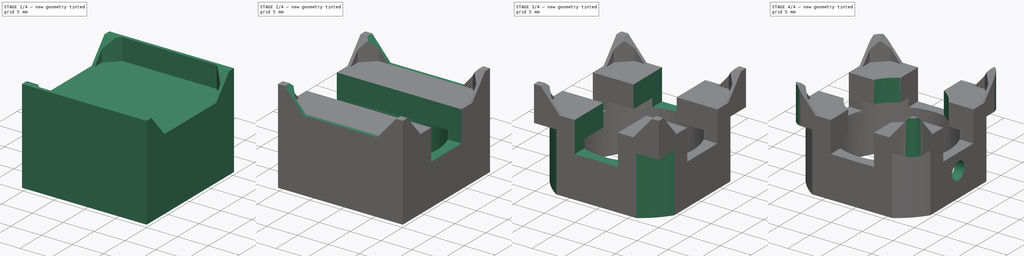
[diagram: build sequence overview — one tinted view per stage of 4, left to right]
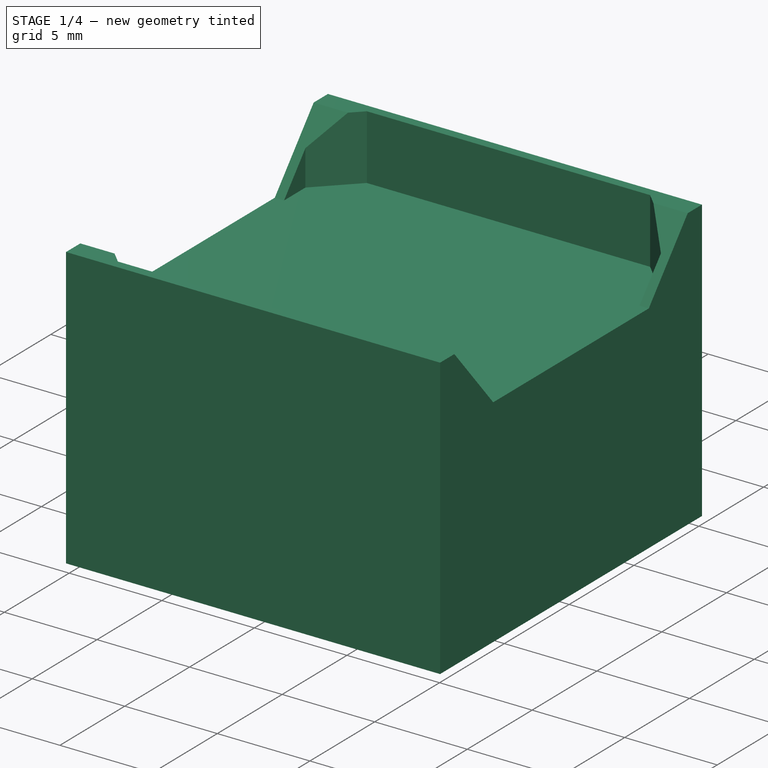
[diagram: stage 1 of 4 — iso view after this stage's code; geometry added in this stage tinted green]
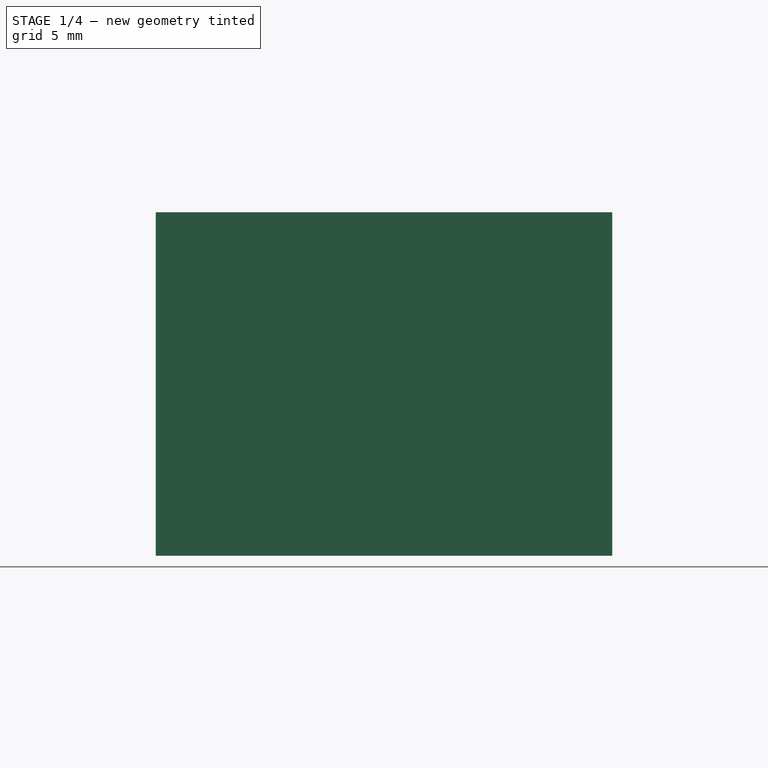
[diagram: stage 1 of 4 — front view after this stage's code; geometry added in this stage tinted green]
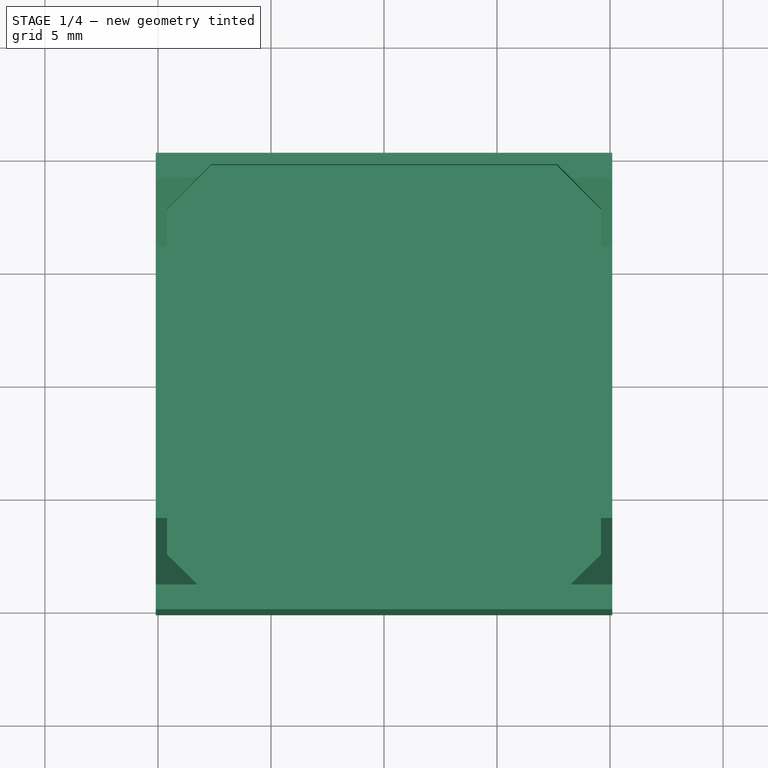
[diagram: stage 1 of 4 — top view after this stage's code; geometry added in this stage tinted green]
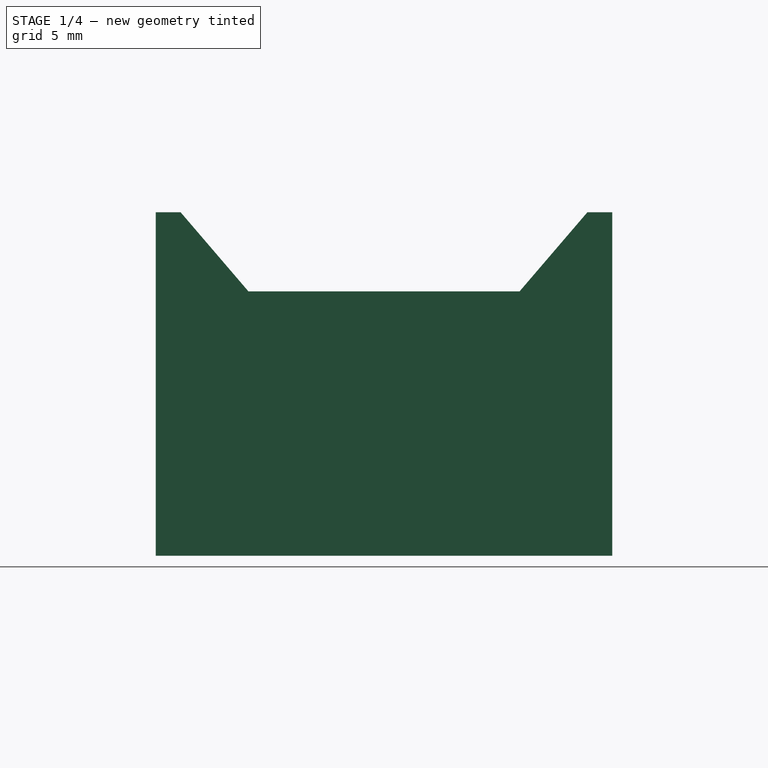
[diagram: stage 1 of 4 — right view after this stage's code; geometry added in this stage tinted green]
FCSTD DOCUMENT  (FreeCAD 0.15R4671 (Git))
Label: Rubiks Center Square Foot
License: All rights reserved
LicenseURL: http://en.wikipedia.org/wiki/All_rights_reserved
objects: Sketcher::SketchObject×10, PartDesign::Pocket×9, PartDesign::Pad×1, Part::Fillet×1
note: 31 computed .brp shape members not serialized (recipe doc carries the construction recipe); baked Part::Feature solids carry a one-line shape summary decoded from their .brp

FEATURE [Sketcher::SketchObject] Sketch
  sketch-geometry (4):
    g0: LineSegment StartX=-10.1 StartY=10.1 StartZ=0 EndX=10.1 EndY=10.1 EndZ=0
    g1: LineSegment StartX=10.1 StartY=10.1 StartZ=0 EndX=10.1 EndY=-10.1 EndZ=0
    g2: LineSegment StartX=10.1 StartY=-10.1 StartZ=0 EndX=-10.1 EndY=-10.1 EndZ=0
    g3: LineSegment StartX=-10.1 StartY=-10.1 StartZ=0 EndX=-10.1 EndY=10.1 EndZ=0
  constraints (12):
    c: Coincident(g0,g1)
    c: Coincident(g1,g2)
    c: Coincident(g2,g3)
    c: Coincident(g3,g0)
    c: Horizontal(g0)
    c: Horizontal(g2)
    c: Vertical(g1)
    c: Vertical(g3)
    c: Equal(g3,g0)
    c: Symmetric(g0,g0,g-2)
    c: Symmetric(g1,g0,g-1)
    c: Distance(g0) = 20.2
FEATURE [PartDesign::Pad] Pad
  Length = 15.2
  Length2 = 100
  Sketch = -> Sketch
  Type = 0
FEATURE [Sketcher::SketchObject] Sketch004
  Placement = pos=(0,0,15.2) rot=(0,0,1;0rad)
  Support = -> Pad [Face6]
  sketch-geometry (8):
    g0: LineSegment StartX=9.6 StartY=7.65 StartZ=0 EndX=7.65 EndY=9.6 EndZ=0
    g1: LineSegment StartX=7.65 StartY=9.6 StartZ=0 EndX=-7.65 EndY=9.6 EndZ=0
    g2: LineSegment StartX=-7.65 StartY=9.6 StartZ=0 EndX=-9.6 EndY=7.65 EndZ=0
    g3: LineSegment StartX=-9.6 StartY=7.65 StartZ=0 EndX=-9.6 EndY=-7.65 EndZ=0
    g4: LineSegment StartX=-9.6 StartY=-7.65 StartZ=0 EndX=-7.65 EndY=-9.6 EndZ=0
    g5: LineSegment StartX=-7.65 StartY=-9.6 StartZ=0 EndX=7.65 EndY=-9.6 EndZ=0
    g6: LineSegment StartX=7.65 StartY=-9.6 StartZ=0 EndX=9.6 EndY=-7.65 EndZ=0
    g7: LineSegment StartX=9.6 StartY=-7.65 StartZ=0 EndX=9.6 EndY=7.65 EndZ=0
  constraints (24):
    c: Coincident(g0,g1)
    c: Coincident(g1,g2)
    c: Coincident(g2,g3)
    c: Coincident(g3,g4)
    c: Coincident(g4,g5)
    c: Coincident(g5,g6)
    c: Coincident(g6,g7)
    c: Coincident(g7,g0)
    c: Coincident(g5,g-1)
    c: Vertical(g3)
    c: Vertical(g7)
    c: Horizontal(g1)
    c: Horizontal(g5)
    c: Symmetric(g2,g0,g-2)
    c: Symmetric(g1,g4,g-1)
    c: DistanceX(g2,g0) = 19.2
    c: Equal(g7,g3)
    c: Equal(g3,g5)
    c: Equal(g5,g1)
    c: Equal(g2,g0)
    c: Equal(g0,g6)
    c: Equal(g6,g4)
    c: DistanceY(g1,g4) = -19.2
    c: DistanceY(g3,g2) = 15.3
FEATURE [PartDesign::Pocket] Pocket
  Length = 3.5
  Sketch = -> Sketch004
  Type = 0
FEATURE [Sketcher::SketchObject] Sketch006
  ExternalGeometry = -> [Pocket]
  Placement = pos=(-10.1,0,0) rot=(0.57735,-0.57735,-0.57735;2.0944rad)
  Support = -> Pocket [Face2]
  sketch-geometry (4):
    g0: LineSegment StartX=-9 StartY=15.2 StartZ=0 EndX=-6 EndY=11.7 EndZ=0
    g1: LineSegment StartX=-6 StartY=11.7 StartZ=0 EndX=6 EndY=11.7 EndZ=0
    g2: LineSegment StartX=6 StartY=11.7 StartZ=0 EndX=9 EndY=15.2 EndZ=0
    g3: LineSegment StartX=9 StartY=15.2 StartZ=0 EndX=-9 EndY=15.2 EndZ=0
  constraints (12):
    c: PointOnObject(g0,g-3)
    c: Coincident(g0,g1)
    c: Horizontal(g1)
    c: Coincident(g1,g2)
    c: Coincident(g2,g3)
    c: Coincident(g3,g0)
    c: Horizontal(g3)
    c: DistanceY(g1,g2) = 3.5
    c: Symmetric(g0,g1,g-2)
    c: Symmetric(g0,g2,g-2)
    c: DistanceX(g0,g1) = 12
    c: DistanceX(g0,g2) = 18
FEATURE [PartDesign::Pocket] Pocket001
  Length = 5
  Sketch = -> Sketch006
  Type = 1
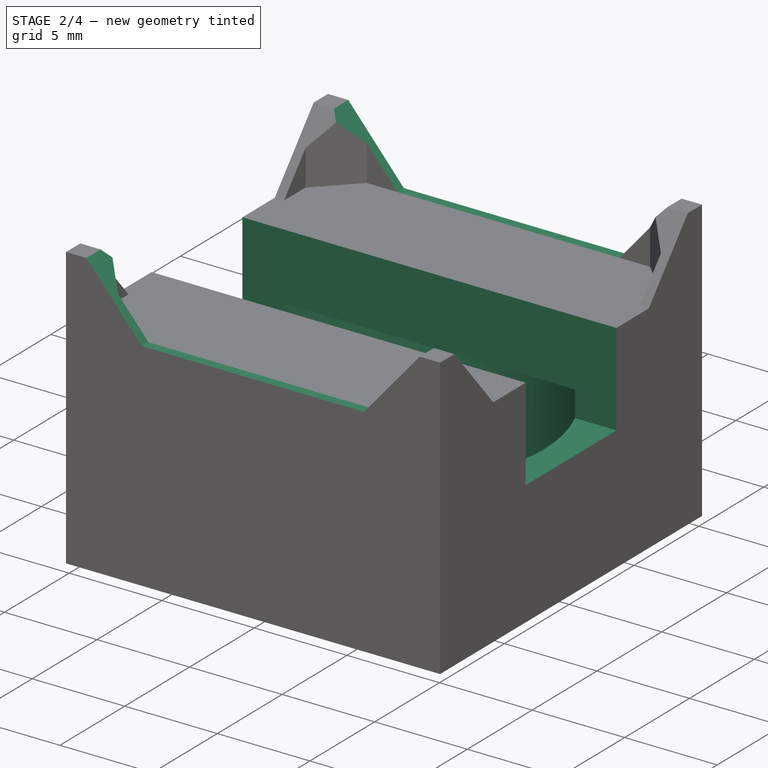
[diagram: stage 2 of 4 — iso view after this stage's code; geometry added in this stage tinted green]
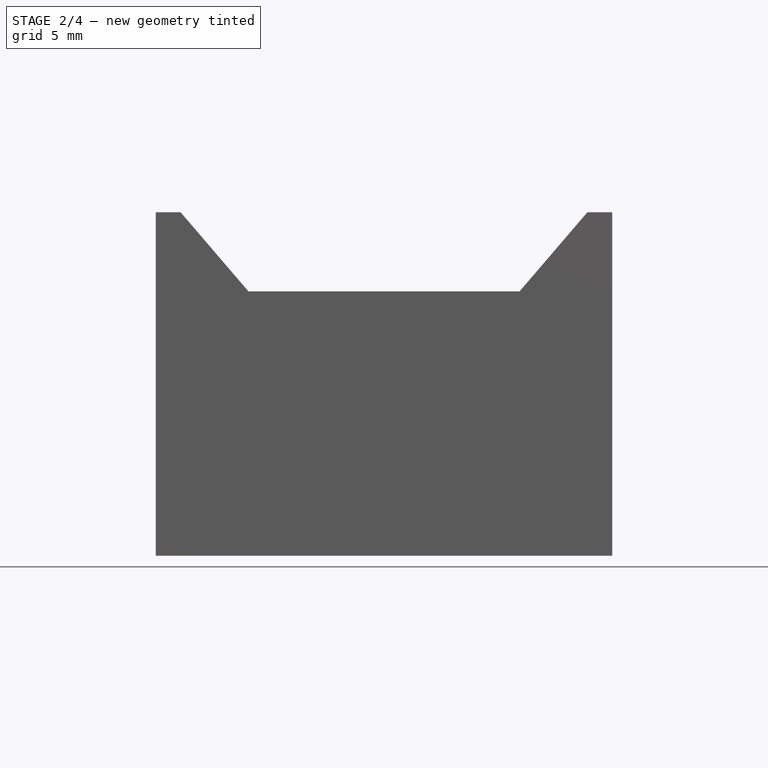
[diagram: stage 2 of 4 — front view after this stage's code; geometry added in this stage tinted green]
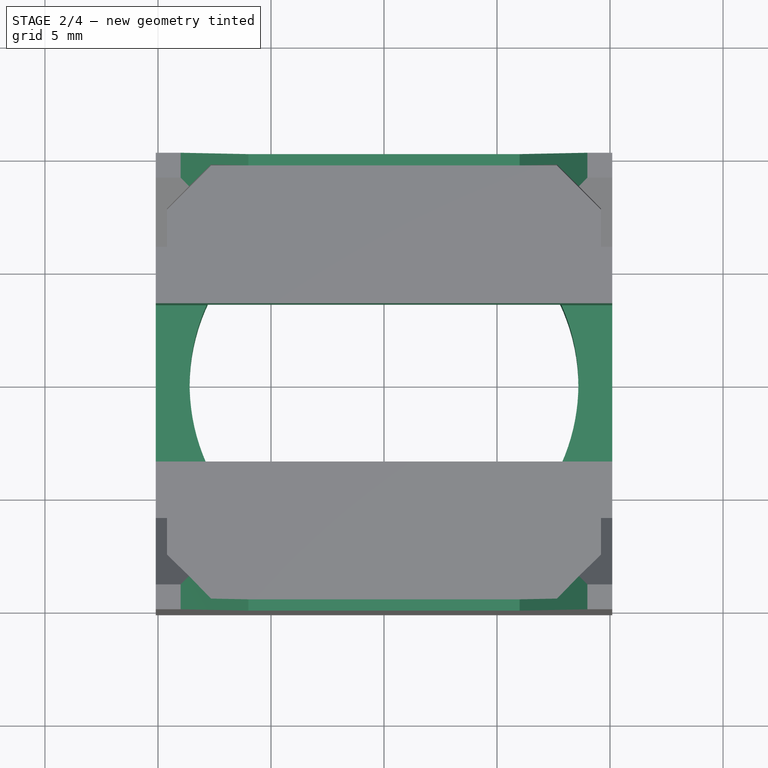
[diagram: stage 2 of 4 — top view after this stage's code; geometry added in this stage tinted green]
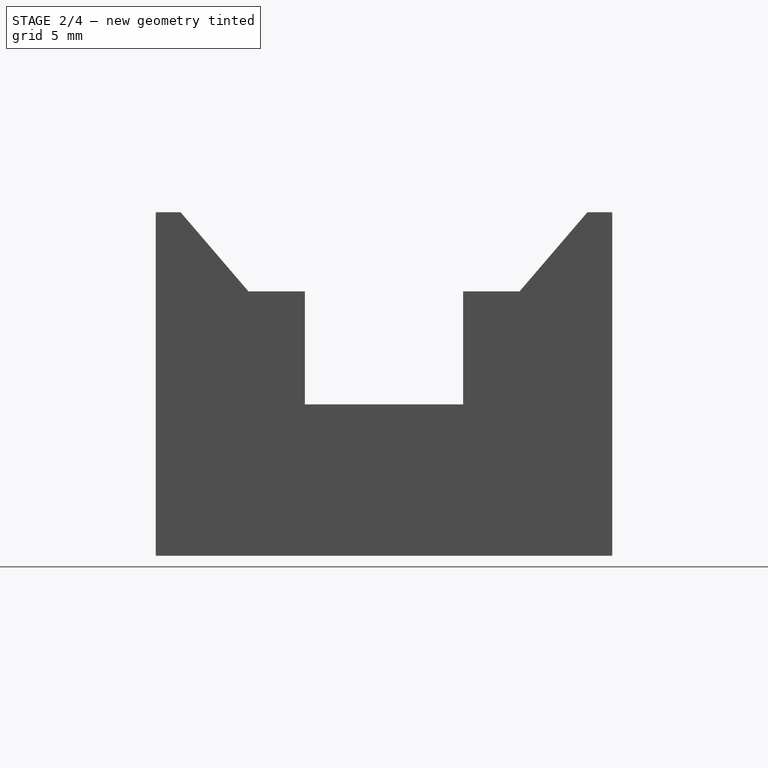
[diagram: stage 2 of 4 — right view after this stage's code; geometry added in this stage tinted green]
FEATURE [Sketcher::SketchObject] Sketch007
  ExternalGeometry = -> [Pocket001]
  Placement = pos=(0,10.1,0) rot=(0,0.707107,0.707107;3.14159rad)
  Support = -> Pocket001 [Face1]
  sketch-geometry (4):
    g0: LineSegment StartX=-9 StartY=15.2 StartZ=0 EndX=9 EndY=15.2 EndZ=0
    g1: LineSegment StartX=9 StartY=15.2 StartZ=0 EndX=6 EndY=11.7 EndZ=0
    g2: LineSegment StartX=6 StartY=11.7 StartZ=0 EndX=-6 EndY=11.7 EndZ=0
    g3: LineSegment StartX=-6 StartY=11.7 StartZ=0 EndX=-9 EndY=15.2 EndZ=0
  constraints (12):
    c: Coincident(g0,g1)
    c: Coincident(g1,g2)
    c: Coincident(g2,g3)
    c: Coincident(g3,g0)
    c: Horizontal(g0)
    c: Horizontal(g2)
    c: PointOnObject(g0,g-3)
    c: Symmetric(g0,g0,g-2)
    c: Symmetric(g2,g1,g-2)
    c: DistanceX(g0,g0) = 18
    c: Distance(g2) = 12
    c: DistanceY(g1,g0) = 3.5
FEATURE [PartDesign::Pocket] Pocket002
  Length = 5
  Sketch = -> Sketch007
  Type = 1
FEATURE [Sketcher::SketchObject] Sketch008
  Placement = pos=(0,0,0) rot=(1,0,0;3.14159rad)
  Support = -> Pocket002 [Face2]
  sketch-geometry (1):
    g0: Circle CenterX=0 CenterY=0 CenterZ=0 NormalX=0 NormalY=0 NormalZ=1 Radius=8.6
  constraints (2):
    c: Coincident(g0,g-1)
    c: Radius(g0) = 8.6
FEATURE [PartDesign::Pocket] Pocket003
  Length = 8.1
  Sketch = -> Sketch008
  Type = 0
FEATURE [Sketcher::SketchObject] Sketch009
  ExternalGeometry = -> [Pocket003]
  Placement = pos=(10.1,0,0) rot=(0.57735,0.57735,0.57735;2.0944rad)
  Support = -> Pocket003 [Face3]
  sketch-geometry (4):
    g0: LineSegment StartX=-3.5 StartY=11.7 StartZ=0 EndX=3.5 EndY=11.7 EndZ=0
    g1: LineSegment StartX=3.5 StartY=11.7 StartZ=0 EndX=3.5 EndY=6.7 EndZ=0
    g2: LineSegment StartX=3.5 StartY=6.7 StartZ=0 EndX=-3.5 EndY=6.7 EndZ=0
    g3: LineSegment StartX=-3.5 StartY=6.7 StartZ=0 EndX=-3.5 EndY=11.7 EndZ=0
  constraints (12):
    c: Coincident(g0,g1)
    c: Coincident(g1,g2)
    c: Coincident(g2,g3)
    c: Coincident(g3,g0)
    c: Horizontal(g0)
    c: Horizontal(g2)
    c: Vertical(g1)
    c: Vertical(g3)
    c: PointOnObject(g0,g-3)
    c: Symmetric(g0,g0,g-2)
    c: Distance(g3) = 5
    c: Distance(g2) = 7
FEATURE [PartDesign::Pocket] Pocket004
  Length = 5
  Sketch = -> Sketch009
  Type = 1
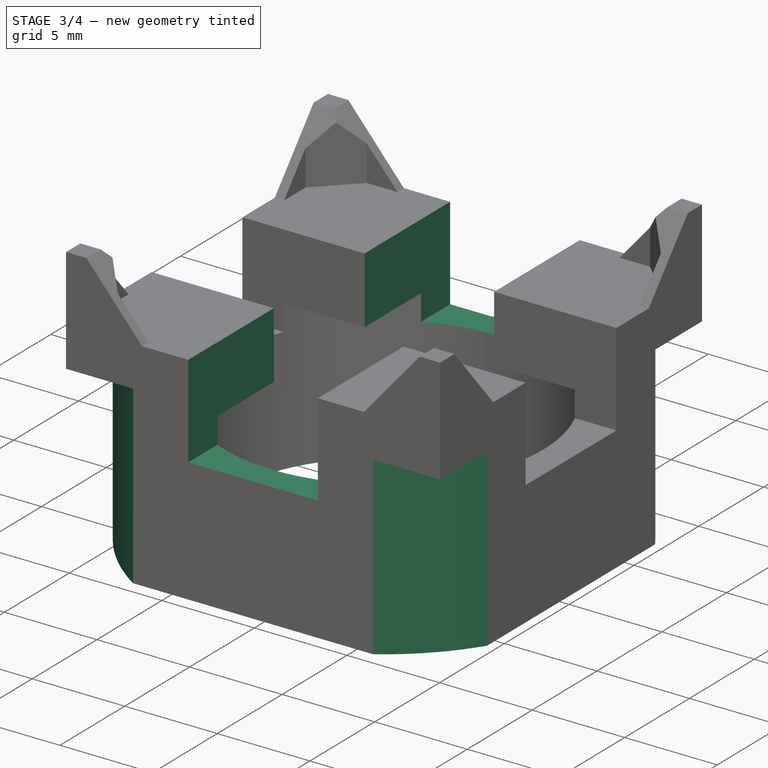
[diagram: stage 3 of 4 — iso view after this stage's code; geometry added in this stage tinted green]
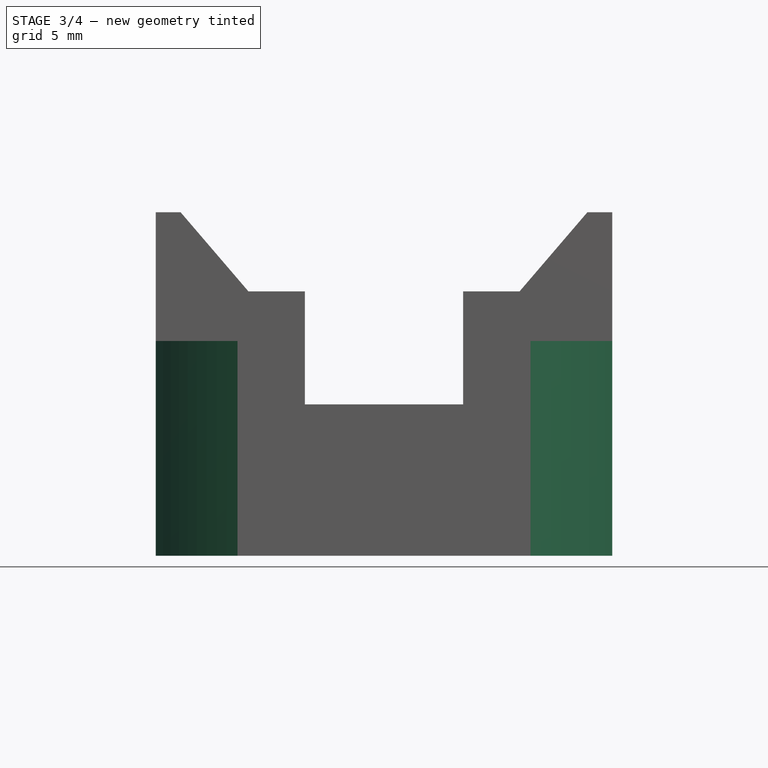
[diagram: stage 3 of 4 — front view after this stage's code; geometry added in this stage tinted green]
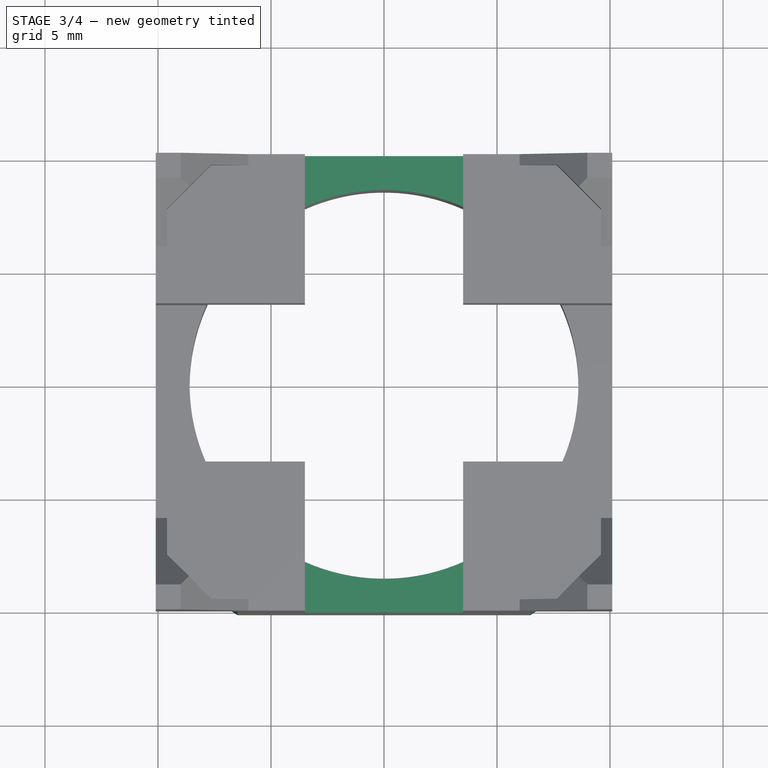
[diagram: stage 3 of 4 — top view after this stage's code; geometry added in this stage tinted green]
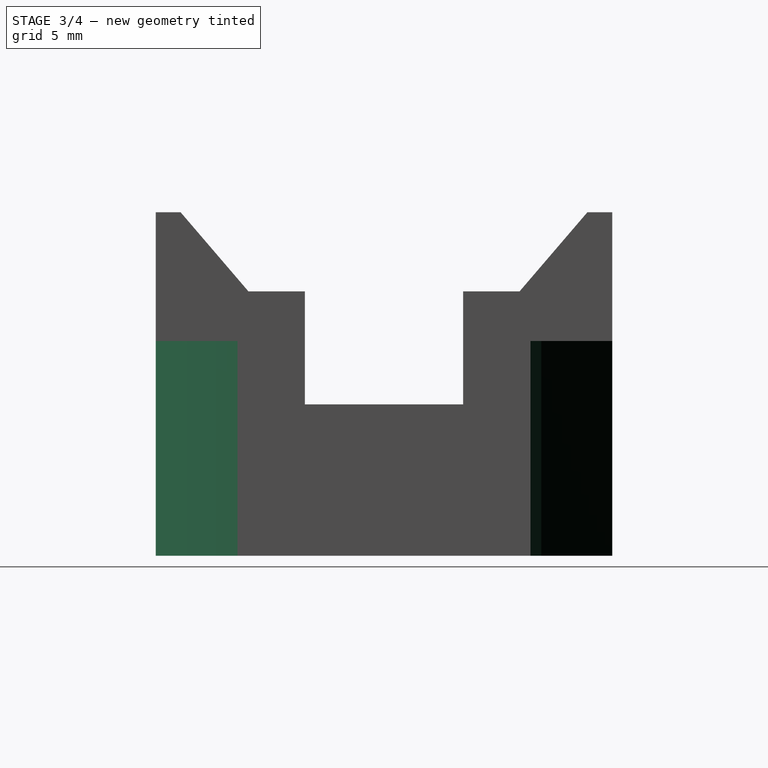
[diagram: stage 3 of 4 — right view after this stage's code; geometry added in this stage tinted green]
FEATURE [Sketcher::SketchObject] Sketch010
  ExternalGeometry = -> [Pocket004]
  Placement = pos=(0,-10.1,0) rot=(1,0,0;1.5708rad)
  Support = -> Pocket004 [Face10]
  sketch-geometry (4):
    g0: LineSegment StartX=-3.5 StartY=11.7 StartZ=0 EndX=3.5 EndY=11.7 EndZ=0
    g1: LineSegment StartX=3.5 StartY=11.7 StartZ=0 EndX=3.5 EndY=6.7 EndZ=0
    g2: LineSegment StartX=3.5 StartY=6.7 StartZ=0 EndX=-3.5 EndY=6.7 EndZ=0
    g3: LineSegment StartX=-3.5 StartY=6.7 StartZ=0 EndX=-3.5 EndY=11.7 EndZ=0
  constraints (12):
    c: Coincident(g0,g1)
    c: Coincident(g1,g2)
    c: Coincident(g2,g3)
    c: Coincident(g3,g0)
    c: Horizontal(g0)
    c: Horizontal(g2)
    c: Vertical(g1)
    c: Vertical(g3)
    c: PointOnObject(g0,g-3)
    c: Symmetric(g0,g0,g-2)
    c: Distance(g3) = 5
    c: Distance(g2) = 7
FEATURE [PartDesign::Pocket] Pocket005
  Length = 5
  Sketch = -> Sketch010
  Type = 1
FEATURE [Sketcher::SketchObject] Sketch011
  Placement = pos=(0,0,0) rot=(1,0,0;3.14159rad)
  Support = -> Pocket005 [Face2]
  sketch-geometry (2):
    g0: Circle CenterX=0 CenterY=0 CenterZ=0 NormalX=0 NormalY=0 NormalZ=1 Radius=12
    g1: Circle CenterX=0 CenterY=0 CenterZ=0 NormalX=0 NormalY=0 NormalZ=1 Radius=20
  constraints (4):
    c: Coincident(g0,g-1)
    c: Coincident(g1,g-1)
    c: Radius(g0) = 12
    c: Radius(g1) = 20
FEATURE [PartDesign::Pocket] Pocket006
  Length = 9.5
  Sketch = -> Sketch011
  Type = 0
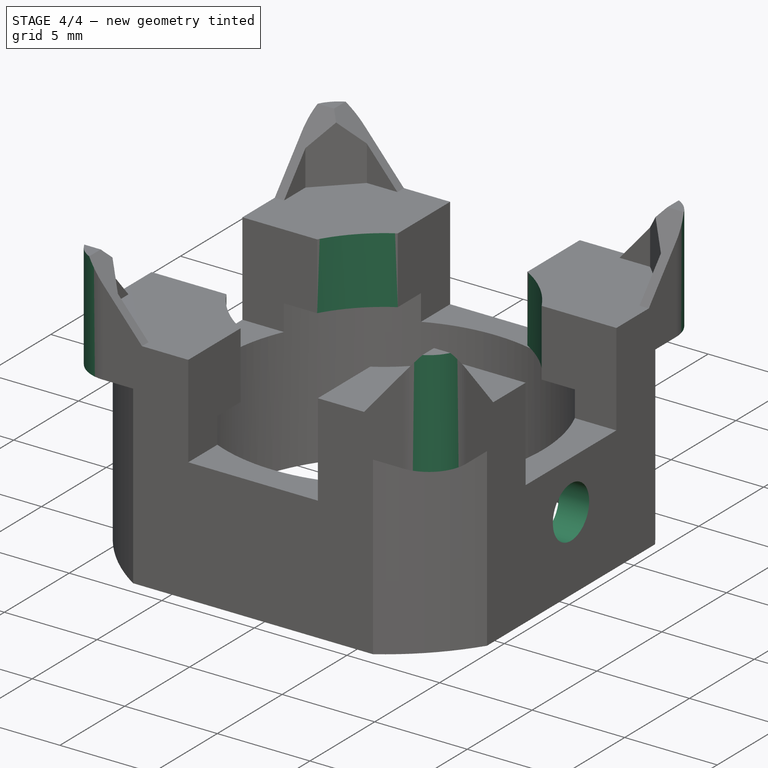
[diagram: stage 4 of 4 — iso view after this stage's code; geometry added in this stage tinted green]
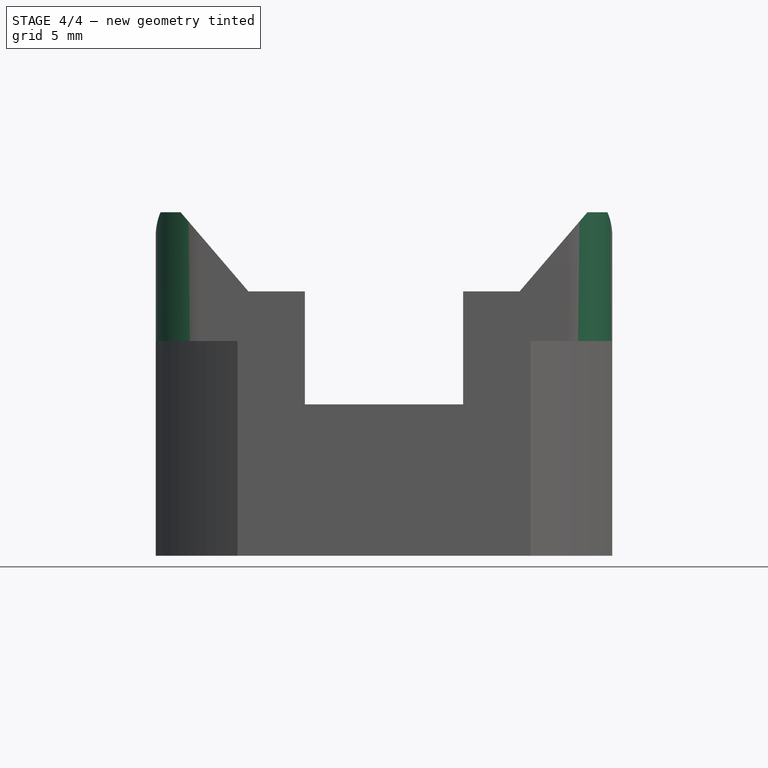
[diagram: stage 4 of 4 — front view after this stage's code; geometry added in this stage tinted green]
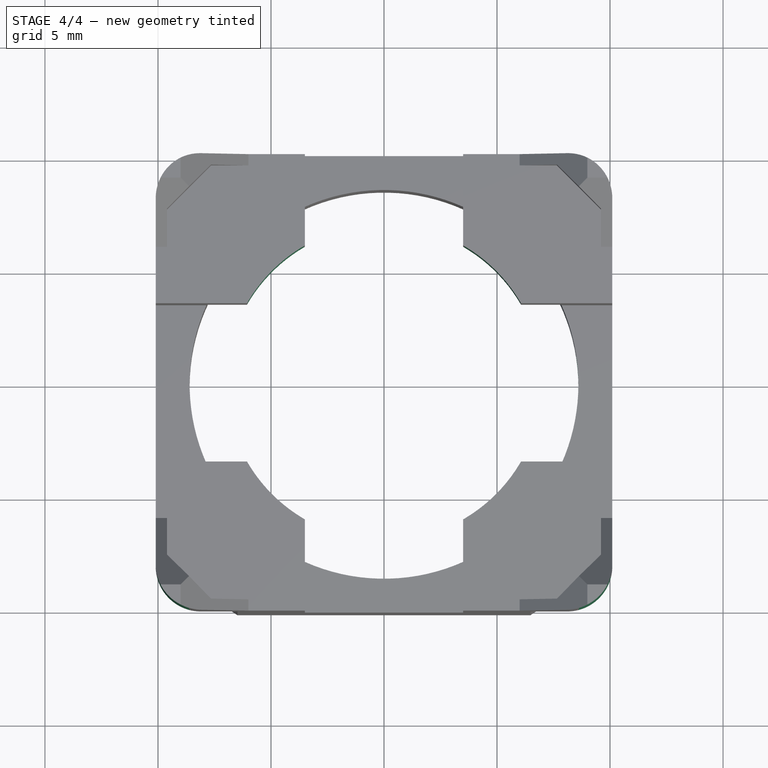
[diagram: stage 4 of 4 — top view after this stage's code; geometry added in this stage tinted green]
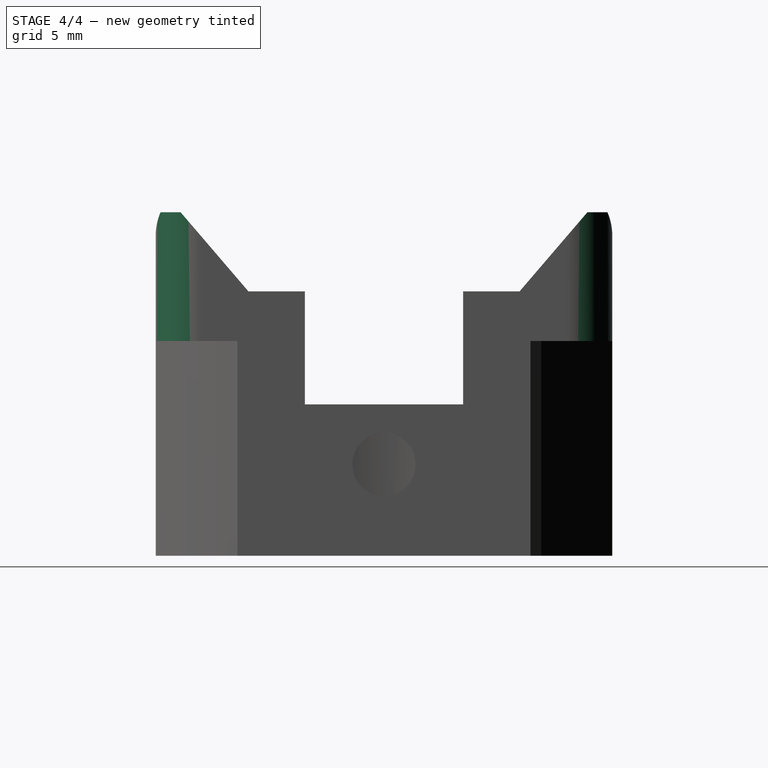
[diagram: stage 4 of 4 — right view after this stage's code; geometry added in this stage tinted green]
FEATURE [Sketcher::SketchObject] Sketch012
  Placement = pos=(0,0,8.1) rot=(1,0,0;3.14159rad)
  Support = -> Pocket006 [Face57]
  sketch-geometry (1):
    g0: Circle CenterX=0 CenterY=0 CenterZ=0 NormalX=0 NormalY=0 NormalZ=1 Radius=7
  constraints (2):
    c: Coincident(g0,g-1)
    c: Radius(g0) = 7
FEATURE [PartDesign::Pocket] Pocket007
  Length = 5
  Sketch = -> Sketch012
  Type = 1
FEATURE [Sketcher::SketchObject] Sketch013
  Placement = pos=(10.1,0,0) rot=(0.57735,0.57735,0.57735;2.0944rad)
  Support = -> Pocket007 [Face5]
  sketch-geometry (1):
    g0: Circle CenterX=0 CenterY=4.05 CenterZ=0 NormalX=0 NormalY=0 NormalZ=1 Radius=1.4
  constraints (3):
    c: PointOnObject(g0,g-2)
    c: DistanceY(g-1,g0) = 4.05
    c: Radius(g0) = 1.4
FEATURE [PartDesign::Pocket] Pocket008
  Length = 3
  Sketch = -> Sketch013
  Type = 0
FEATURE [Part::Fillet] Fillet
  Base = -> Pocket008
  Edges = 4 edges r=2: [Edge4,Edge14,Edge30,Edge79]
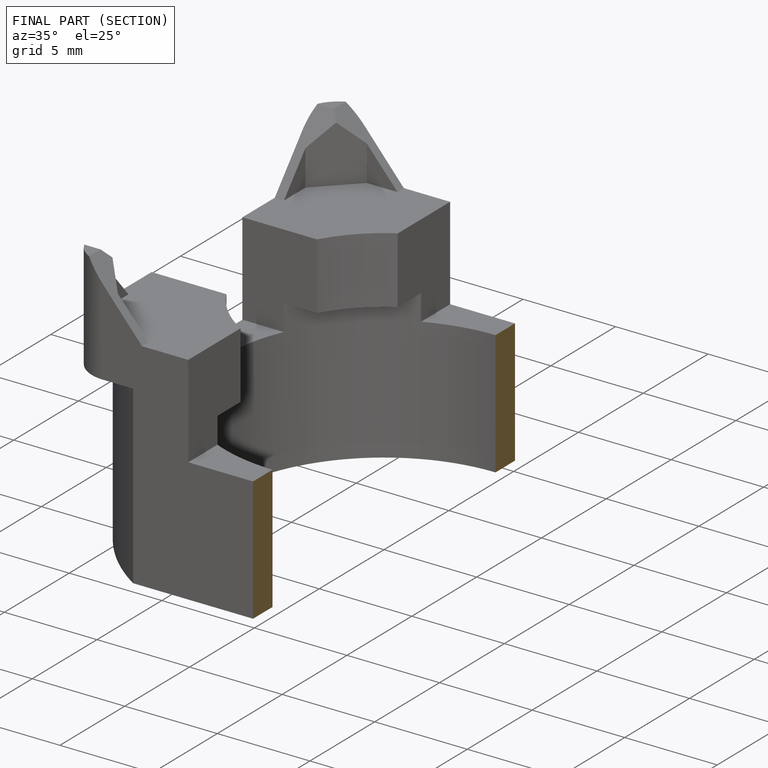
[diagram: finished part — half-section view (interior)]
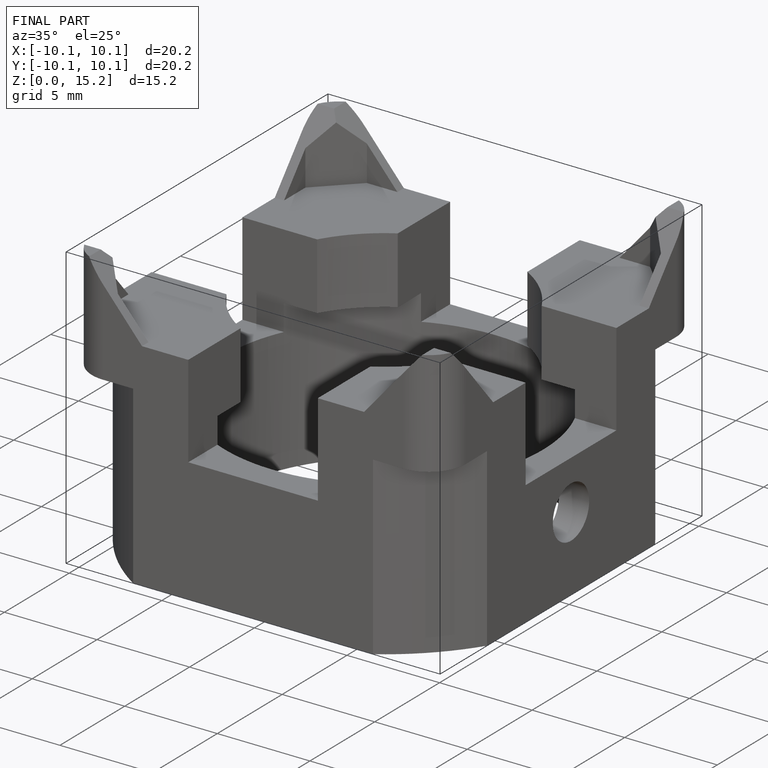
[diagram: finished part — iso view with bounding-box wireframe]
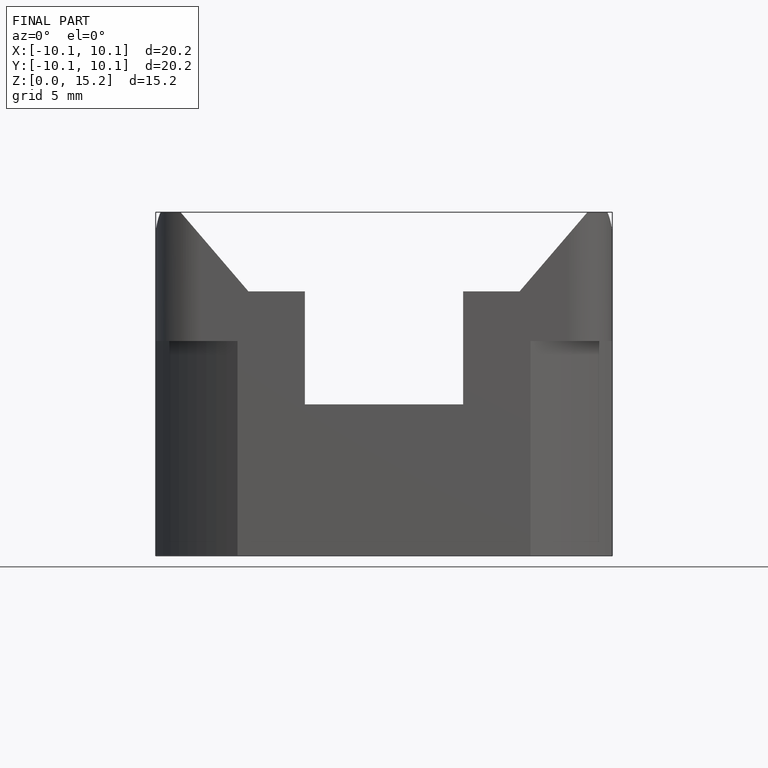
[diagram: finished part — front view with bounding-box wireframe]
